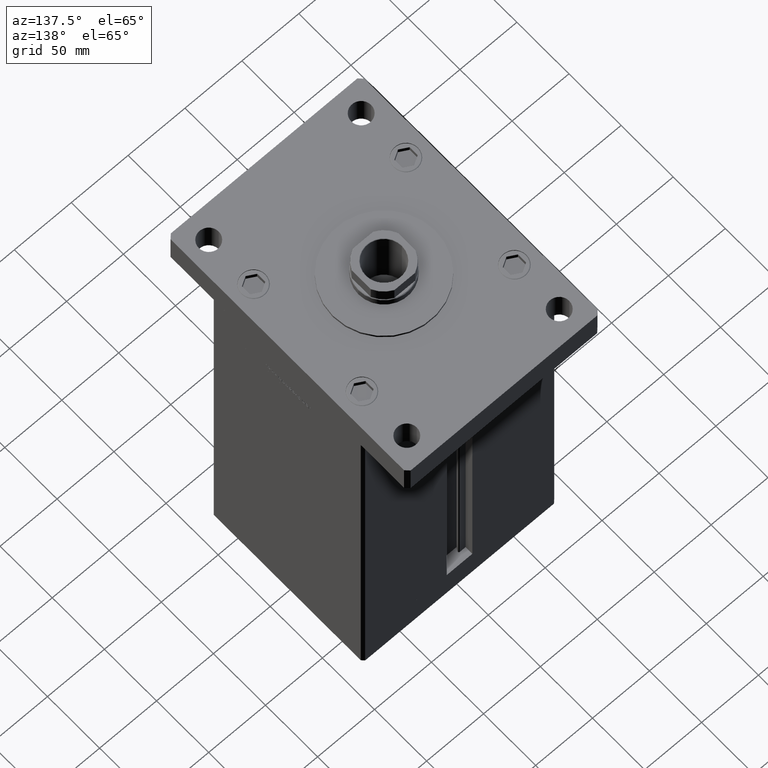
[diagram: clean part render]
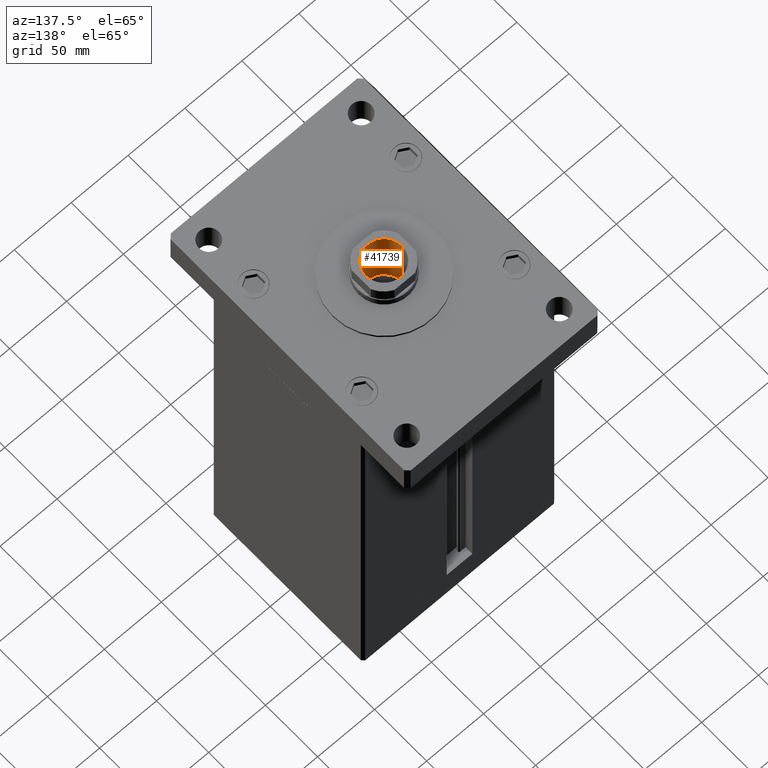
[diagram: same view with one face highlighted and labeled with its STEP entity id]
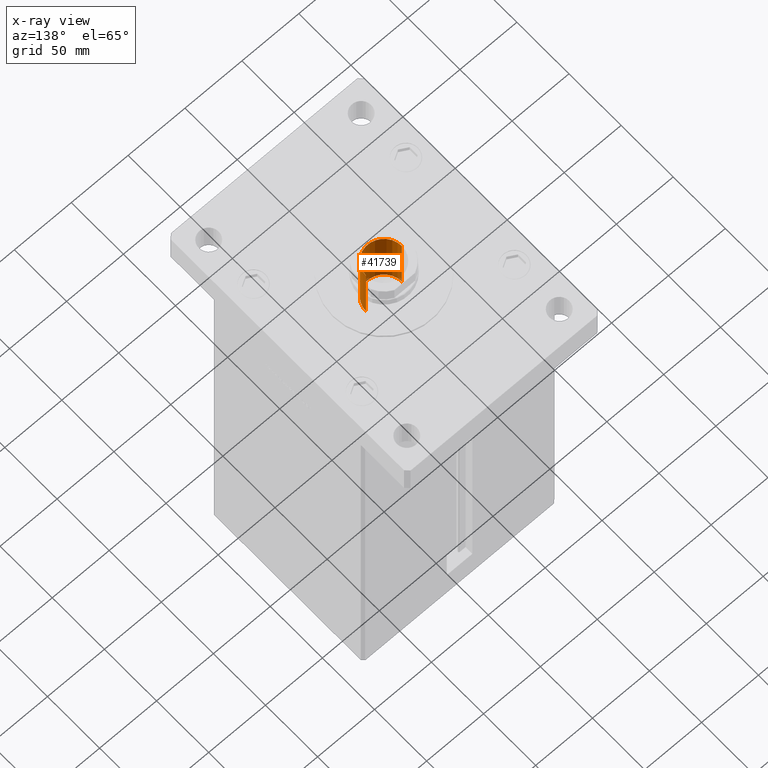
[diagram: x-ray of the same camera — body ghosted, the highlighted face saturated]
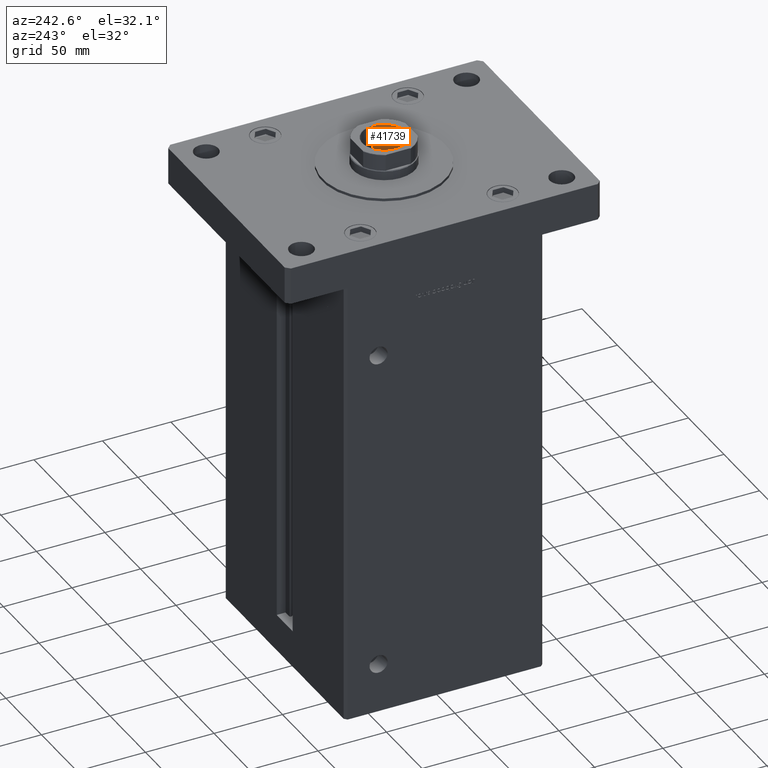
[diagram: same view with one face highlighted and labeled with its STEP entity id]
A machine part, auxiliary view. The second image highlights one B-rep face of the part: STEP entity #41739.
The next image is the same camera in x-ray: the body ghosted, the highlighted face saturated — about 1% of this face is hidden behind the body in this view.
A second angle (auxiliary view) of the same face is appended — the face is thin or edge-on in the first view.
In plain terms, the highlighted cylindrical surface (edge-blend (fillet) strip) has radius 15.75 mm, axis along (0, 0, 1).
Its self-contained STEP definition (entity closure, byte-faithful):
#1133 = FACE_OUTER_BOUND ( 'NONE', #30020, .T. ) ;
#3063 = DIRECTION ( 'NONE',  ( 0.000000000000000000, 0.000000000000000000, 1.000000000000000000 ) ) ;
#3332 = DIRECTION ( 'NONE',  ( 1.000000000000000000, 0.000000000000000000, 0.000000000000000000 ) ) ;
#3341 = EDGE_CURVE ( 'NONE', #40490, #50968, #50394, .T. ) ;
#4393 = DIRECTION ( 'NONE',  ( 1.000000000000000000, 0.000000000000000000, 0.000000000000000000 ) ) ;
#7183 = EDGE_CURVE ( 'NONE', #28456, #40490, #47971, .T. ) ;
#7677 = CARTESIAN_POINT ( 'NONE',  ( 0.000000000000000000, 0.000000000000000000, 339.7000000000000455 ) ) ;
#13196 = ORIENTED_EDGE ( 'NONE', *, *, #7183, .F. ) ;
#13241 = VECTOR ( 'NONE', #38201, 1000.000000000000000 ) ;
#13307 = CARTESIAN_POINT ( 'NONE',  ( 0.000000000000000000, 0.000000000000000000, 285.0000000000000000 ) ) ;
#17539 = CARTESIAN_POINT ( 'NONE',  ( -15.74999999999999289, 1.928818708657080556E-15, 339.9999999999999432 ) ) ;
#17677 = CYLINDRICAL_SURFACE ( 'NONE', #23362, 15.74999999999999289 ) ;
#18214 = AXIS2_PLACEMENT_3D ( 'NONE', #7677, #3063, #3332 ) ;
#21461 = VERTEX_POINT ( 'NONE', #25174 ) ;
#23362 = AXIS2_PLACEMENT_3D ( 'NONE', #30091, #49621, #4393 ) ;
#24139 = ORIENTED_EDGE ( 'NONE', *, *, #3341, .F. ) ;
#24620 = AXIS2_PLACEMENT_3D ( 'NONE', #13307, #29805, #37663 ) ;
#25174 = CARTESIAN_POINT ( 'NONE',  ( -15.74999999999999289, 1.928818708657080556E-15, 339.7000000000000455 ) ) ;
#26002 = CARTESIAN_POINT ( 'NONE',  ( 15.74999999999999289, 0.000000000000000000, 339.9999999999999432 ) ) ;
#26440 = LINE ( 'NONE', #17539, #51286 ) ;
#28456 = VERTEX_POINT ( 'NONE', #47117 ) ;
#29805 = DIRECTION ( 'NONE',  ( -0.000000000000000000, -0.000000000000000000, 1.000000000000000000 ) ) ;
#29967 = DIRECTION ( 'NONE',  ( -0.000000000000000000, -0.000000000000000000, 1.000000000000000000 ) ) ;
#30020 = EDGE_LOOP ( 'NONE', ( #13196, #34922, #43039, #24139 ) ) ;
#30091 = CARTESIAN_POINT ( 'NONE',  ( 0.000000000000000000, 0.000000000000000000, 339.9999999999999432 ) ) ;
#30269 = CIRCLE ( 'NONE', #18214, 15.74999999999999289 ) ;
#33951 = CARTESIAN_POINT ( 'NONE',  ( 15.74999999999998934, 0.000000000000000000, 285.0000000000000000 ) ) ;
#34368 = CARTESIAN_POINT ( 'NONE',  ( 15.74999999999999289, 0.000000000000000000, 339.7000000000000455 ) ) ;
#34922 = ORIENTED_EDGE ( 'NONE', *, *, #35427, .T. ) ;
#35427 = EDGE_CURVE ( 'NONE', #28456, #21461, #26440, .T. ) ;
#37663 = DIRECTION ( 'NONE',  ( 1.000000000000000000, 0.000000000000000000, 0.000000000000000000 ) ) ;
#38201 = DIRECTION ( 'NONE',  ( -0.000000000000000000, -0.000000000000000000, 1.000000000000000000 ) ) ;
#40490 = VERTEX_POINT ( 'NONE', #33951 ) ;
#41577 = EDGE_CURVE ( 'NONE', #21461, #50968, #30269, .T. ) ;
#41739 = ADVANCED_FACE ( 'NONE', ( #1133 ), #17677, .F. ) ;
#43039 = ORIENTED_EDGE ( 'NONE', *, *, #41577, .T. ) ;
#47117 = CARTESIAN_POINT ( 'NONE',  ( -15.74999999999998934, 1.928818708657080161E-15, 285.0000000000000000 ) ) ;
#47971 = CIRCLE ( 'NONE', #24620, 15.74999999999998934 ) ;
#49621 = DIRECTION ( 'NONE',  ( -0.000000000000000000, -0.000000000000000000, 1.000000000000000000 ) ) ;
#50394 = LINE ( 'NONE', #26002, #13241 ) ;
#50968 = VERTEX_POINT ( 'NONE', #34368 ) ;
#51286 = VECTOR ( 'NONE', #29967, 1000.000000000000000 ) ;